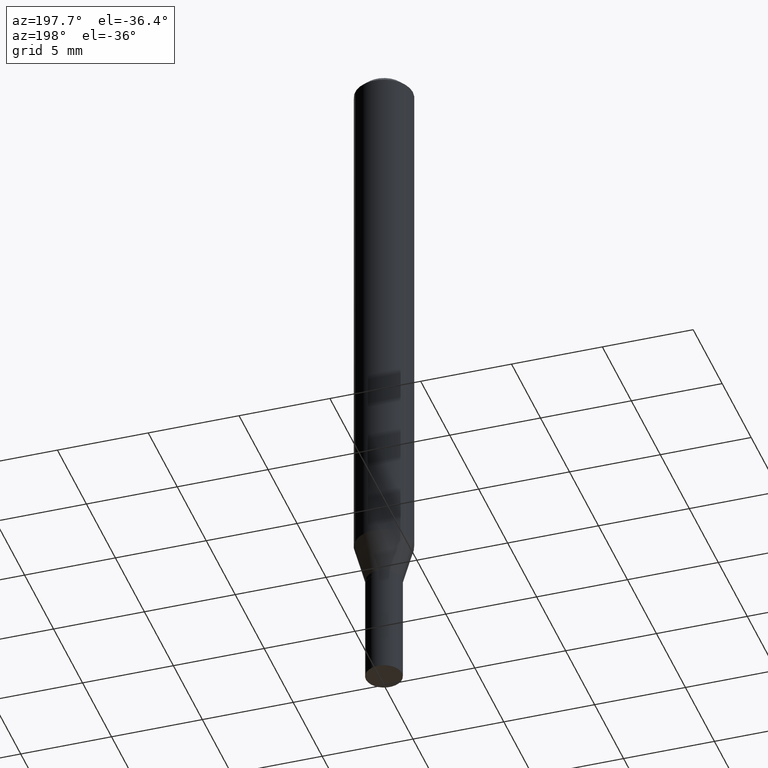
[diagram: clean part render]
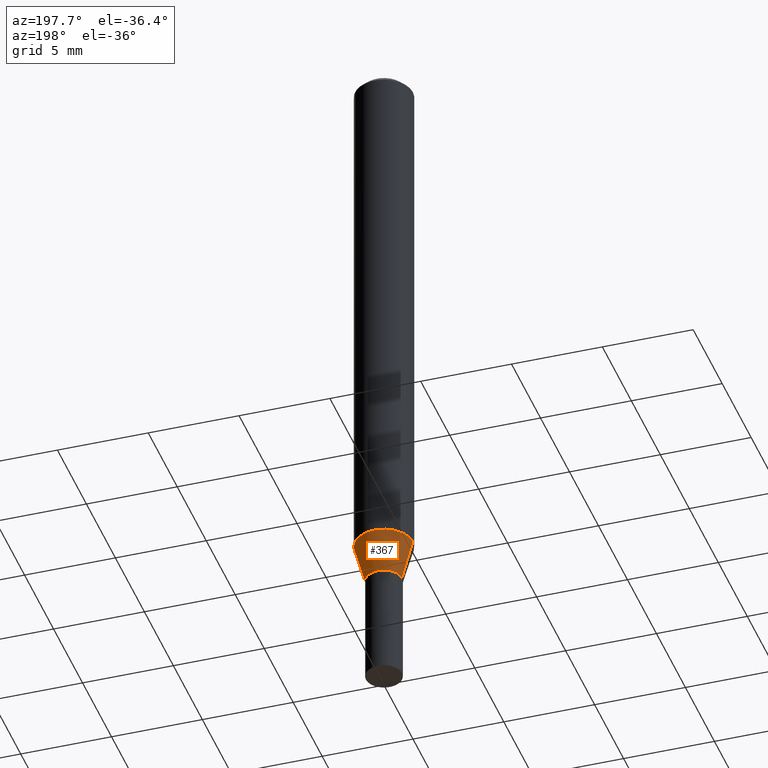
[diagram: same view with one face highlighted and labeled with its STEP entity id]
A machine part, auxiliary view. The second image highlights one B-rep face of the part: STEP entity #367.
In plain terms, the highlighted conical surface has half-angle 15 deg.
Its self-contained STEP definition (entity closure, byte-faithful):
#1 = VERTEX_POINT ( 'NONE', #130 ) ;
#2 = DIRECTION ( 'NONE',  ( -2.445468806185136597E-29, 3.491481338843145583E-15, 1.000000000000000000 ) ) ;
#27 = DIRECTION ( 'NONE',  ( 0.2588190451025206840, 1.565188264969626504E-15, 0.9659258262890682012 ) ) ;
#35 = CARTESIAN_POINT ( 'NONE',  ( 3.071508820568532122E-29, -4.385300561586992092E-15, -1.256000000000000227 ) ) ;
#50 = EDGE_CURVE ( 'NONE', #158, #293, #363, .T. ) ;
#64 = CARTESIAN_POINT ( 'NONE',  ( 0.03899999999999990280, -4.657636106016756115E-15, -1.256000000000000227 ) ) ;
#65 = ORIENTED_EDGE ( 'NONE', *, *, #50, .F. ) ;
#80 = CIRCLE ( 'NONE', #256, 0.03899999999999990280 ) ;
#90 = AXIS2_PLACEMENT_3D ( 'NONE', #238, #453, #276 ) ;
#95 = LINE ( 'NONE', #64, #250 ) ;
#100 = AXIS2_PLACEMENT_3D ( 'NONE', #229, #452, #236 ) ;
#107 = CARTESIAN_POINT ( 'NONE',  ( -0.03899999999999990280, -4.108188894640553562E-15, -1.256000000000000227 ) ) ;
#130 = CARTESIAN_POINT ( 'NONE',  ( 0.03899999999999990280, -4.657636106016756115E-15, -1.256000000000000227 ) ) ;
#131 = EDGE_LOOP ( 'NONE', ( #341, #141, #65, #412 ) ) ;
#141 = ORIENTED_EDGE ( 'NONE', *, *, #237, .T. ) ;
#158 = VERTEX_POINT ( 'NONE', #206 ) ;
#170 = VECTOR ( 'NONE', #364, 39.37007874015748854 ) ;
#174 = EDGE_CURVE ( 'NONE', #1, #158, #95, .T. ) ;
#206 = CARTESIAN_POINT ( 'NONE',  ( 0.06250000000000000000, -4.515521663811713727E-15, -1.168296806022131262 ) ) ;
#216 = LINE ( 'NONE', #107, #170 ) ;
#229 = CARTESIAN_POINT ( 'NONE',  ( 3.071508820568532122E-29, -4.385300561586992092E-15, -1.256000000000000227 ) ) ;
#231 = CARTESIAN_POINT ( 'NONE',  ( -0.06250000000000000000, -3.634997286606259442E-15, -1.168296806022131262 ) ) ;
#233 = EDGE_CURVE ( 'NONE', #1, #257, #80, .T. ) ;
#236 = DIRECTION ( 'NONE',  ( 1.000000000000000000, -6.982962677686275388E-15, 0.000000000000000000 ) ) ;
#237 = EDGE_CURVE ( 'NONE', #257, #293, #216, .T. ) ;
#238 = CARTESIAN_POINT ( 'NONE',  ( 2.857033395492849215E-29, -4.079086496456321269E-15, -1.168296806022131262 ) ) ;
#250 = VECTOR ( 'NONE', #27, 39.37007874015748854 ) ;
#256 = AXIS2_PLACEMENT_3D ( 'NONE', #35, #2, #442 ) ;
#257 = VERTEX_POINT ( 'NONE', #409 ) ;
#276 = DIRECTION ( 'NONE',  ( 1.000000000000000000, -6.982962677686262766E-15, 0.000000000000000000 ) ) ;
#278 = CONICAL_SURFACE ( 'NONE', #100, 0.03899999999999990280, 0.2617993877991494078 ) ;
#293 = VERTEX_POINT ( 'NONE', #231 ) ;
#310 = FACE_OUTER_BOUND ( 'NONE', #131, .T. ) ;
#341 = ORIENTED_EDGE ( 'NONE', *, *, #233, .T. ) ;
#363 = CIRCLE ( 'NONE', #90, 0.06250000000000000000 ) ;
#364 = DIRECTION ( 'NONE',  ( -0.2588190451025206840, 5.211531920934545520E-15, 0.9659258262890682012 ) ) ;
#367 = ADVANCED_FACE ( 'NONE', ( #310 ), #278, .T. ) ;
#409 = CARTESIAN_POINT ( 'NONE',  ( -0.03899999999999990280, -3.871593090623406502E-15, -1.256000000000000227 ) ) ;
#412 = ORIENTED_EDGE ( 'NONE', *, *, #174, .F. ) ;
#442 = DIRECTION ( 'NONE',  ( 1.000000000000000000, -6.982962677686275388E-15, 0.000000000000000000 ) ) ;
#452 = DIRECTION ( 'NONE',  ( -2.445468806185136597E-29, 3.491481338843145583E-15, 1.000000000000000000 ) ) ;
#453 = DIRECTION ( 'NONE',  ( -2.445468806185136597E-29, 3.491481338843145583E-15, 1.000000000000000000 ) ) ;